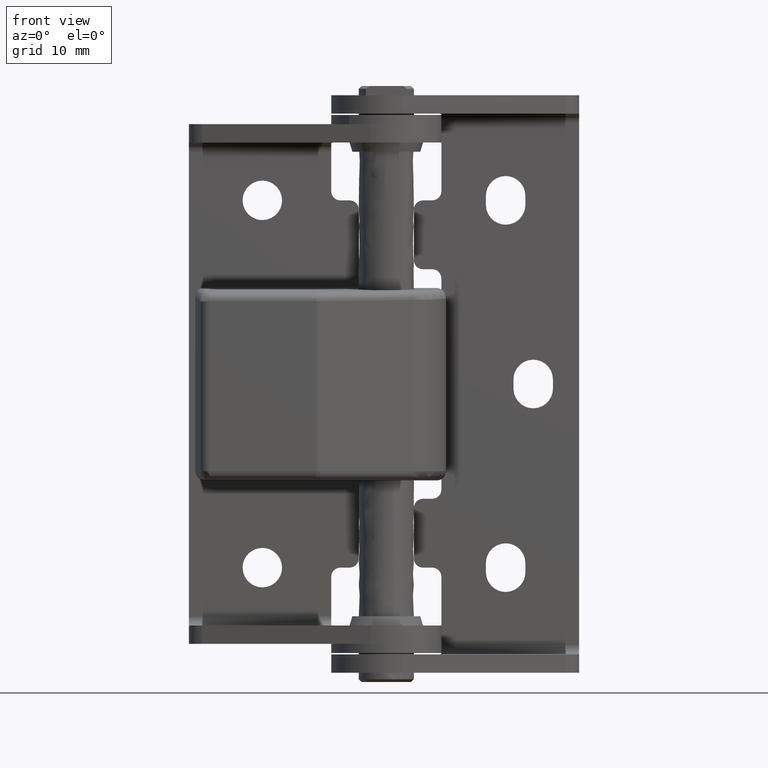
[diagram: clean part render]
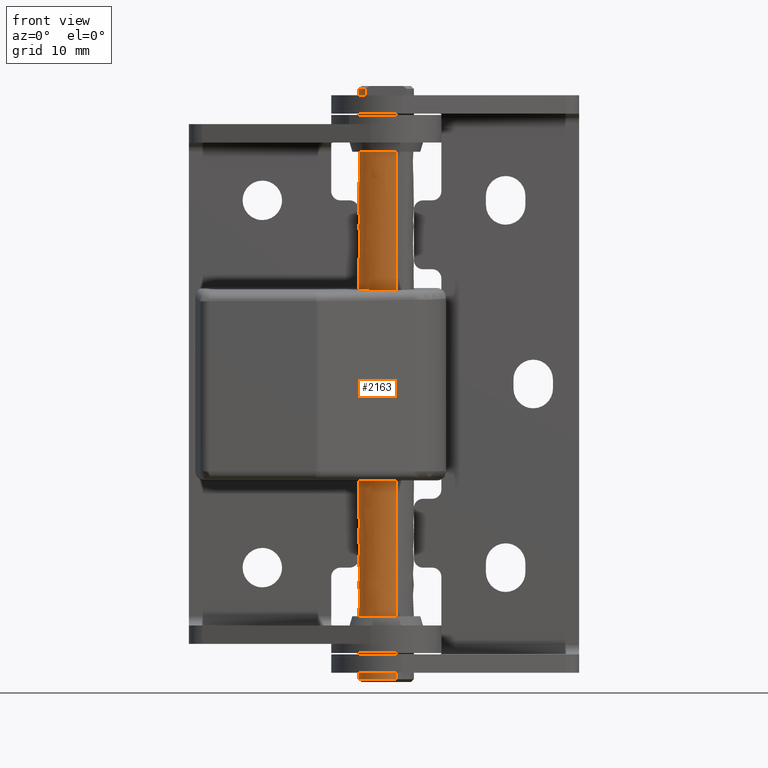
[diagram: same view with one face highlighted and labeled with its STEP entity id]
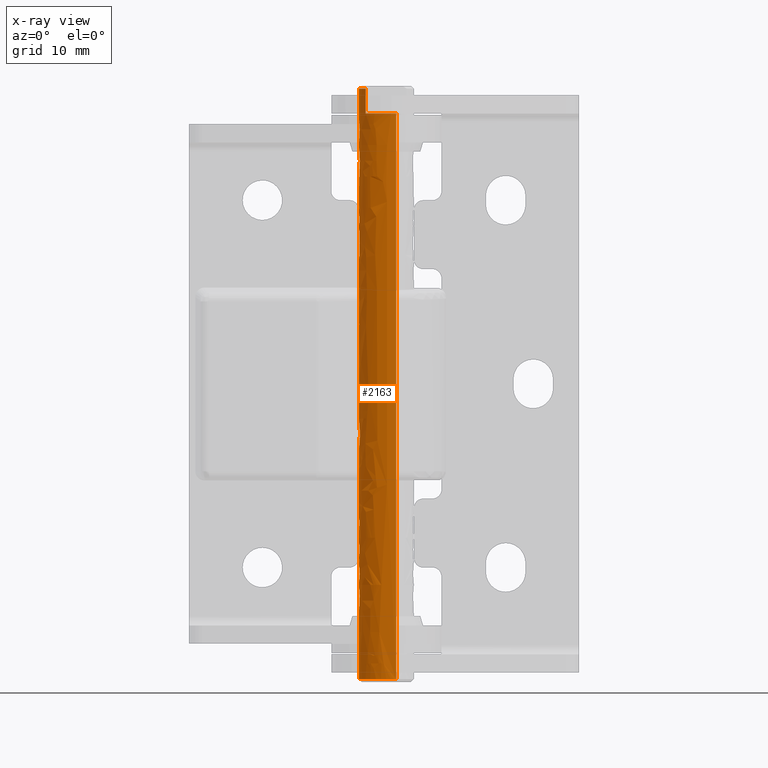
[diagram: x-ray of the same camera — body ghosted, the highlighted face saturated]
A machine part, front view. The second image highlights one B-rep face of the part: STEP entity #2163.
The next image is the same camera in x-ray: the body ghosted, the highlighted face saturated — about 0% of this face is hidden behind the body in this view.
In plain terms, the highlighted face is a freeform B-spline surface patch.
Its self-contained STEP definition (entity closure, byte-faithful):
#1802=CARTESIAN_POINT('',(-2.236067977499665,1.999999999999915,60.900000000000013));
#1803=VERTEX_POINT('',#1802);
#1811=CARTESIAN_POINT('',(-1.090256931971367,2.794877425270729,60.900000000000013));
#1812=VERTEX_POINT('',#1811);
#1825=CARTESIAN_POINT('',(-1.090256931971367,2.794877425270729,60.900000000000013));
#1826=CARTESIAN_POINT('',(-1.267818665445587,2.725630662304943,60.900000000000077));
#1827=CARTESIAN_POINT('',(-1.688569717831255,2.513344699976473,60.899999999999729));
#1828=CARTESIAN_POINT('',(-2.050446746877678,2.207704510599783,60.900000000000368));
#1829=CARTESIAN_POINT('',(-2.236067977499665,1.999999999999915,60.900000000000013));
#1830=B_SPLINE_CURVE_WITH_KNOTS('',3,(#1825,#1826,#1827,#1828,#1829),.UNSPECIFIED.,.F.,.U.,(4,1,4),(7.754984E-009,0.571765359596399,1.407413066766565),.UNSPECIFIED.);
#1831=EDGE_CURVE('',#1812,#1803,#1830,.T.);
#1841=CARTESIAN_POINT('',(-2.236067977499665,1.999999999999915,63.600000000000001));
#1842=VERTEX_POINT('',#1841);
#1843=CARTESIAN_POINT('',(-2.236067977499665,1.999999999999915,60.900000000000013));
#1844=CARTESIAN_POINT('',(-2.236067977499665,1.999999999999915,63.600000000000001));
#1845=QUASI_UNIFORM_CURVE('',1,(#1843,#1844),.UNSPECIFIED.,.F.,.U.);
#1846=EDGE_CURVE('',#1803,#1842,#1845,.T.);
#1921=CARTESIAN_POINT('',(-2.139751396417106,2.102727841006817,-0.699999977121420));
#1922=VERTEX_POINT('',#1921);
#1928=CARTESIAN_POINT('',(-1.090256980100210,2.794877558124173,-0.700000000000029));
#1929=VERTEX_POINT('',#1928);
#1930=CARTESIAN_POINT('',(-1.090256980100210,2.794877558124173,-0.700000000000029));
#1931=CARTESIAN_POINT('',(-1.250048059522722,2.732555551675881,-0.699999996807897));
#1932=CARTESIAN_POINT('',(-1.630176817139280,2.545300725703723,-0.699999988950337));
#1933=CARTESIAN_POINT('',(-1.964097637791875,2.281579798067471,-0.699999981376775));
#1934=CARTESIAN_POINT('',(-2.139751396417106,2.102727841006817,-0.699999977121420));
#1935=B_SPLINE_CURVE_WITH_KNOTS('',3,(#1930,#1931,#1932,#1933,#1934),.UNSPECIFIED.,.F.,.U.,(4,1,4),(5.951540E-009,0.514548371822655,1.266578114619265),.UNSPECIFIED.);
#1936=EDGE_CURVE('',#1929,#1922,#1935,.T.);
#1981=CARTESIAN_POINT('',(1.090256980100608,-2.794877558124173,-0.700000000000037));
#1982=VERTEX_POINT('',#1981);
#1991=CARTESIAN_POINT('',(0.000000834453921,-2.999999999999884,-0.700000000000034));
#1992=VERTEX_POINT('',#1991);
#1993=CARTESIAN_POINT('',(0.000000834453921,-2.999999999999884,-0.700000000000034));
#1994=CARTESIAN_POINT('',(0.371973869406162,-3.000242855688510,-0.700000000000031));
#1995=CARTESIAN_POINT('',(0.743785305220927,-2.930185758959783,-0.700000000000037));
#1996=CARTESIAN_POINT('',(1.090256980100608,-2.794877558124173,-0.700000000000037));
#1997=B_SPLINE_CURVE_WITH_KNOTS('',3,(#1993,#1994,#1995,#1996),.UNSPECIFIED.,.F.,.U.,(4,4),(4.022811E-009,1.115811016388406),.UNSPECIFIED.);
#1998=EDGE_CURVE('',#1992,#1982,#1997,.T.);
#2000=CARTESIAN_POINT('',(-2.999999999999801,0.0,-0.700000000000034));
#2001=VERTEX_POINT('',#2000);
#2002=CARTESIAN_POINT('',(-2.999999999999801,0.0,-0.700000000000034));
#2003=CARTESIAN_POINT('',(-3.000040750846617,-0.220896229095563,-0.700000000000035));
#2004=CARTESIAN_POINT('',(-2.955063060455980,-0.625847681440125,-0.700000000000035));
#2005=CARTESIAN_POINT('',(-2.791923750628580,-1.130040632118214,-0.700000000000033));
#2006=CARTESIAN_POINT('',(-2.559741657910638,-1.591300812810037,-0.700000000000035));
#2007=CARTESIAN_POINT('',(-2.202624225269002,-2.079170962214247,-0.700000000000032));
#2008=CARTESIAN_POINT('',(-1.719372498789893,-2.485805399160725,-0.700000000000037));
#2009=CARTESIAN_POINT('',(-1.220114196282169,-2.752547144331285,-0.700000000000034));
#2010=CARTESIAN_POINT('',(-0.687176781005481,-2.943271586501665,-0.700000000000036));
#2011=CARTESIAN_POINT('',(-0.269988723503833,-3.000101938415148,-0.700000000000033));
#2012=CARTESIAN_POINT('',(0.000000834453921,-2.999999999999884,-0.700000000000034));
#2013=B_SPLINE_CURVE_WITH_KNOTS('',3,(#2002,#2003,#2004,#2005,#2006,#2007,#2008,#2009,#2010,#2011,#2012),.UNSPECIFIED.,.F.,.U.,(4,1,1,1,1,1,1,1,4),(0.000000086667746,0.662681420349164,1.214920913040632,1.583081641720067,2.208971904885111,3.018890493975789,3.460681288342703,3.902481632265689,4.712419018946348),.UNSPECIFIED.);
#2014=EDGE_CURVE('',#2001,#1992,#2013,.T.);
#2016=CARTESIAN_POINT('',(-2.139751396417106,2.102727841006817,-0.699999977121420));
#2017=CARTESIAN_POINT('',(-2.369567653533459,1.869138276277154,-0.699999979662982));
#2018=CARTESIAN_POINT('',(-2.666403349749790,1.446436856202634,-0.699999984262150));
#2019=CARTESIAN_POINT('',(-2.939635832636234,0.715948843361874,-0.699999992210204));
#2020=CARTESIAN_POINT('',(-3.000088896927063,0.266990123484042,-0.699999997095060));
#2021=CARTESIAN_POINT('',(-2.999999999999801,0.0,-0.700000000000034));
#2022=B_SPLINE_CURVE_WITH_KNOTS('',3,(#2016,#2017,#2018,#2019,#2020,#2021),.UNSPECIFIED.,.F.,.U.,(4,1,1,4),(0.000000022570027,0.982981843378296,1.529080193266580,2.330028874839830),.UNSPECIFIED.);
#2023=EDGE_CURVE('',#1922,#2001,#2022,.T.);
#2052=CARTESIAN_POINT('',(-1.090256931971367,2.794877425270729,60.900000000000013));
#2053=CARTESIAN_POINT('',(-1.090256980100210,2.794877558124173,-0.700000000000029));
#2054=QUASI_UNIFORM_CURVE('',1,(#2052,#2053),.UNSPECIFIED.,.F.,.U.);
#2055=EDGE_CURVE('',#1812,#1929,#2054,.T.);
#2082=CARTESIAN_POINT('',(1.090256931971765,-2.794877425270729,60.900000000000013));
#2083=VERTEX_POINT('',#2082);
#2092=CARTESIAN_POINT('',(1.090256931971765,-2.794877425270729,60.900000000000013));
#2093=CARTESIAN_POINT('',(1.090256980100608,-2.794877558124173,-0.700000000000037));
#2094=QUASI_UNIFORM_CURVE('',1,(#2092,#2093),.UNSPECIFIED.,.F.,.U.);
#2095=EDGE_CURVE('',#2083,#1982,#2094,.T.);
#2103=CARTESIAN_POINT('',(1.090256867778534,-2.794877450311940,65.207500000000010));
#2104=CARTESIAN_POINT('',(-1.704620582533406,-3.885134318090275,65.207500000000010));
#2105=CARTESIAN_POINT('',(-2.794877450311741,-1.090256867778335,65.207500000000010));
#2106=CARTESIAN_POINT('',(-3.885134318090076,1.704620582533605,65.207500000000010));
#2107=CARTESIAN_POINT('',(-1.090256867778136,2.794877450311940,65.207500000000010));
#2108=CARTESIAN_POINT('',(1.090256867778534,-2.794877450311940,-2.347687500000042));
#2109=CARTESIAN_POINT('',(-1.704620582533406,-3.885134318090275,-2.347687500000043));
#2110=CARTESIAN_POINT('',(-2.794877450311741,-1.090256867778335,-2.347687500000042));
#2111=CARTESIAN_POINT('',(-3.885134318090076,1.704620582533605,-2.347687500000043));
#2112=CARTESIAN_POINT('',(-1.090256867778136,2.794877450311940,-2.347687500000042));
#2120=(BOUNDED_SURFACE()B_SPLINE_SURFACE(2,1,((#2103,#2108),(#2104,#2109),(#2105,#2110),(#2106,#2111),(#2107,#2112)),.UNSPECIFIED.,.F.,.F.,.U.)B_SPLINE_SURFACE_WITH_KNOTS((3,2,3),(2,2),(0.0,4.970562748477139,9.941125496954278),(0.0,67.555187500000045),.UNSPECIFIED.)GEOMETRIC_REPRESENTATION_ITEM()RATIONAL_B_SPLINE_SURFACE(((1.0,1.0),(0.707106781186548,0.707106781186548),(1.0,1.0),(0.707106781186548,0.707106781186548),(1.0,1.0)))REPRESENTATION_ITEM('')SURFACE());
#2121=ORIENTED_EDGE('',*,*,#1936,.T.);
#2122=ORIENTED_EDGE('',*,*,#2023,.T.);
#2123=ORIENTED_EDGE('',*,*,#2014,.T.);
#2124=ORIENTED_EDGE('',*,*,#1998,.T.);
#2125=ORIENTED_EDGE('',*,*,#2095,.F.);
#2126=CARTESIAN_POINT('',(-2.236067977499665,-1.999999999999915,60.900000000000013));
#2127=VERTEX_POINT('',#2126);
#2128=CARTESIAN_POINT('',(-2.236067977499665,-1.999999999999915,60.900000000000013));
#2129=CARTESIAN_POINT('',(-2.071845512182989,-2.183689252136728,60.899999999999892));
#2130=CARTESIAN_POINT('',(-1.712180631007466,-2.497667920484425,60.900000000000233));
#2131=CARTESIAN_POINT('',(-1.052642770249927,-2.841901252561064,60.899999999999892));
#2132=CARTESIAN_POINT('',(-0.308748813187987,-3.019700016893383,60.900000000000070));
#2133=CARTESIAN_POINT('',(0.436581905621628,-2.996701672584795,60.900000000000169));
#2134=CARTESIAN_POINT('',(0.896038045422374,-2.870657959814468,60.899999999999800));
#2135=CARTESIAN_POINT('',(1.090256931971765,-2.794877425270729,60.900000000000013));
#2136=B_SPLINE_CURVE_WITH_KNOTS('',3,(#2128,#2129,#2130,#2131,#2132,#2133,#2134,#2135),.UNSPECIFIED.,.F.,.U.,(4,1,1,1,1,4),(0.000000025267584,0.739182549907675,1.421522890742201,2.217543153835437,3.013608112559036,3.639066019310031),.UNSPECIFIED.);
#2137=EDGE_CURVE('',#2127,#2083,#2136,.T.);
#2138=ORIENTED_EDGE('',*,*,#2137,.F.);
#2139=CARTESIAN_POINT('',(-2.236067977499665,-1.999999999999915,63.600000000000001));
#2140=VERTEX_POINT('',#2139);
#2141=CARTESIAN_POINT('',(-2.236067977499665,-1.999999999999915,60.900000000000013));
#2142=CARTESIAN_POINT('',(-2.236067977499665,-1.999999999999915,63.600000000000001));
#2143=QUASI_UNIFORM_CURVE('',1,(#2141,#2142),.UNSPECIFIED.,.F.,.U.);
#2144=EDGE_CURVE('',#2127,#2140,#2143,.T.);
#2145=ORIENTED_EDGE('',*,*,#2144,.T.);
#2146=CARTESIAN_POINT('',(-2.236067977499665,-1.999999999999915,63.600000000000001));
#2147=CARTESIAN_POINT('',(-2.456704507097201,-1.753665402863504,63.600000000000058));
#2148=CARTESIAN_POINT('',(-2.728373580263071,-1.323803565219898,63.599999999999881));
#2149=CARTESIAN_POINT('',(-2.968447977688459,-0.583555437568162,63.600000000000378));
#2150=CARTESIAN_POINT('',(-3.026115445572618,0.046778893072458,63.599999999999483));
#2151=CARTESIAN_POINT('',(-2.926149744710499,0.772745700150176,63.600000000000172));
#2152=CARTESIAN_POINT('',(-2.679759537697141,1.417801928669693,63.600000000000023));
#2153=CARTESIAN_POINT('',(-2.388116517704832,1.830055266680331,63.600000000000293));
#2154=CARTESIAN_POINT('',(-2.236067977499665,1.999999999999915,63.600000000000001));
#2155=B_SPLINE_CURVE_WITH_KNOTS('',3,(#2146,#2147,#2148,#2149,#2150,#2151,#2152,#2153,#2154),.UNSPECIFIED.,.F.,.U.,(4,1,1,1,1,1,4),(0.000000073421142,0.991976806734226,1.505080833066952,2.325999716025388,2.873309045504404,3.694275470684438,4.378389653374308),.UNSPECIFIED.);
#2156=EDGE_CURVE('',#2140,#1842,#2155,.T.);
#2157=ORIENTED_EDGE('',*,*,#2156,.T.);
#2158=ORIENTED_EDGE('',*,*,#1846,.F.);
#2159=ORIENTED_EDGE('',*,*,#1831,.F.);
#2160=ORIENTED_EDGE('',*,*,#2055,.T.);
#2161=EDGE_LOOP('',(#2121,#2122,#2123,#2124,#2125,#2138,#2145,#2157,#2158,#2159,#2160));
#2162=FACE_OUTER_BOUND('',#2161,.T.);
#2163=ADVANCED_FACE('',(#2162),#2120,.T.);